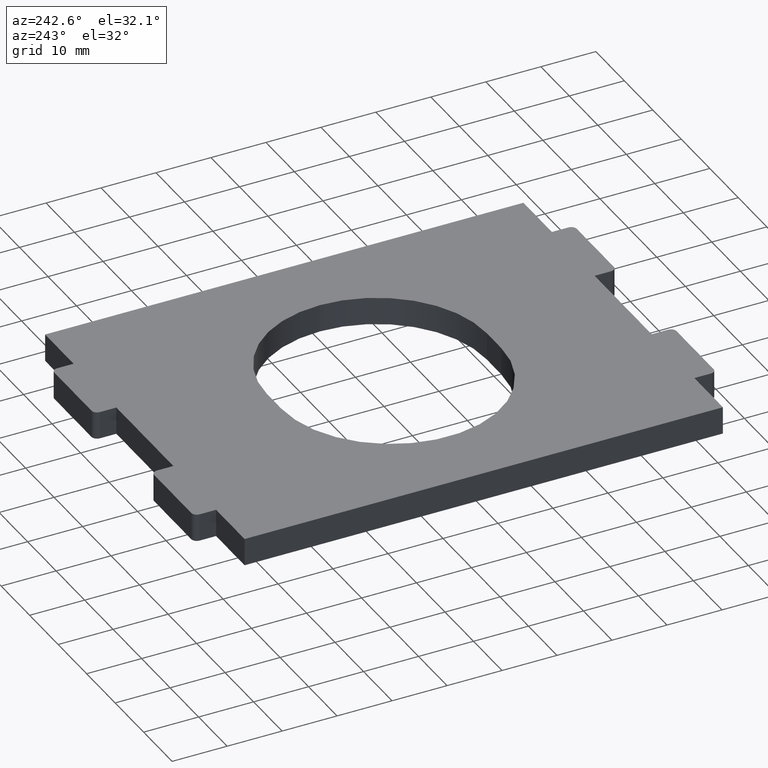
[diagram: clean part render]
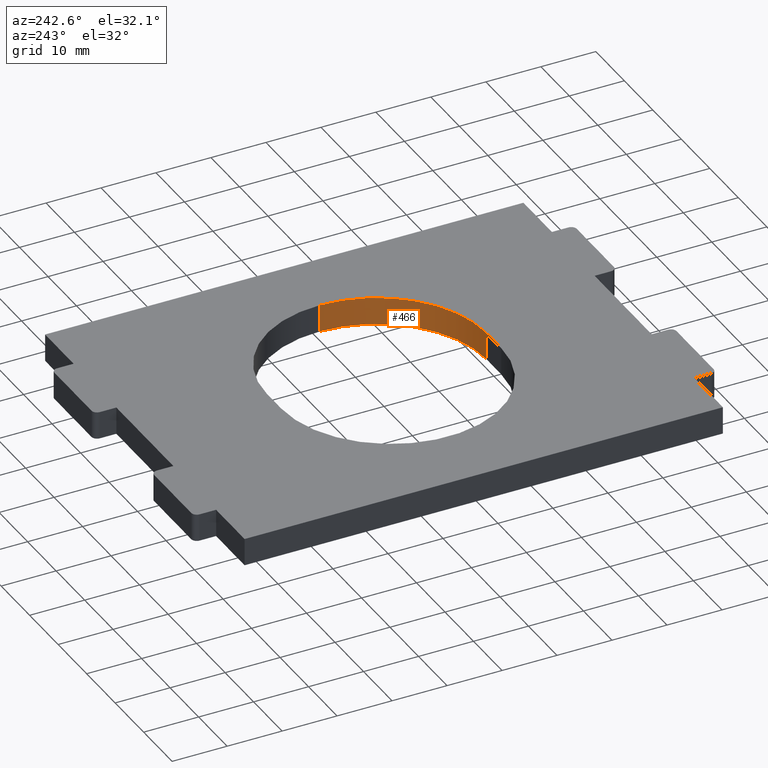
[diagram: same view with one face highlighted and labeled with its STEP entity id]
A machine part, auxiliary view. The second image highlights one B-rep face of the part: STEP entity #466.
In plain terms, the highlighted cylindrical surface (partial cylindrical patch) has radius 20 mm, axis along (-0, -0, 1).
Its self-contained STEP definition (entity closure, byte-faithful):
#14 = VERTEX_POINT ( 'NONE', #250 ) ;
#40 = ORIENTED_EDGE ( 'NONE', *, *, #167, .T. ) ;
#47 = CARTESIAN_POINT ( 'NONE',  ( 2.499999999999996447, -20.00000000000000000, -2.500000000000000000 ) ) ;
#78 = CIRCLE ( 'NONE', #1038, 19.99999999999999645 ) ;
#118 = EDGE_CURVE ( 'NONE', #14, #891, #141, .T. ) ;
#141 = LINE ( 'NONE', #803, #857 ) ;
#167 = EDGE_CURVE ( 'NONE', #190, #891, #837, .T. ) ;
#190 = VERTEX_POINT ( 'NONE', #933 ) ;
#223 = LINE ( 'NONE', #47, #1174 ) ;
#231 = DIRECTION ( 'NONE',  ( 1.000000000000000000, 0.000000000000000000, 0.000000000000000000 ) ) ;
#250 = CARTESIAN_POINT ( 'NONE',  ( 22.49999999999999645, -3.469446951953614189E-15, -2.500000000000000000 ) ) ;
#275 = DIRECTION ( 'NONE',  ( 0.000000000000000000, 0.000000000000000000, 1.000000000000000000 ) ) ;
#301 = ORIENTED_EDGE ( 'NONE', *, *, #118, .F. ) ;
#313 = CARTESIAN_POINT ( 'NONE',  ( 22.49999999999999645, -3.469446951953614189E-15, 2.500000000000000000 ) ) ;
#368 = CARTESIAN_POINT ( 'NONE',  ( 2.500000000000000000, -3.469446951953614189E-15, 2.500000000000000000 ) ) ;
#403 = AXIS2_PLACEMENT_3D ( 'NONE', #607, #516, #802 ) ;
#418 = CARTESIAN_POINT ( 'NONE',  ( 2.500000000000000000, -3.469446951953614189E-15, -2.500000000000000000 ) ) ;
#427 = FACE_OUTER_BOUND ( 'NONE', #462, .T. ) ;
#443 = CARTESIAN_POINT ( 'NONE',  ( 2.499999999999996447, -19.99999999999999645, -2.500000000000000000 ) ) ;
#462 = EDGE_LOOP ( 'NONE', ( #301, #504, #721, #40 ) ) ;
#466 = ADVANCED_FACE ( 'NONE', ( #427 ), #788, .F. ) ;
#504 = ORIENTED_EDGE ( 'NONE', *, *, #949, .F. ) ;
#510 = EDGE_CURVE ( 'NONE', #1067, #190, #223, .T. ) ;
#516 = DIRECTION ( 'NONE',  ( -0.000000000000000000, -0.000000000000000000, 1.000000000000000000 ) ) ;
#607 = CARTESIAN_POINT ( 'NONE',  ( 2.500000000000000000, -3.469446951953614189E-15, -2.500000000000000000 ) ) ;
#714 = DIRECTION ( 'NONE',  ( -0.000000000000000000, -0.000000000000000000, 1.000000000000000000 ) ) ;
#721 = ORIENTED_EDGE ( 'NONE', *, *, #510, .T. ) ;
#744 = DIRECTION ( 'NONE',  ( 1.000000000000000000, 0.000000000000000000, 0.000000000000000000 ) ) ;
#788 = CYLINDRICAL_SURFACE ( 'NONE', #403, 19.99999999999999645 ) ;
#802 = DIRECTION ( 'NONE',  ( 1.000000000000000000, 0.000000000000000000, 0.000000000000000000 ) ) ;
#803 = CARTESIAN_POINT ( 'NONE',  ( 22.49999999999999645, -3.469446951953614189E-15, -2.500000000000000000 ) ) ;
#837 = CIRCLE ( 'NONE', #1190, 19.99999999999999645 ) ;
#857 = VECTOR ( 'NONE', #714, 1000.000000000000000 ) ;
#880 = DIRECTION ( 'NONE',  ( -0.000000000000000000, -0.000000000000000000, 1.000000000000000000 ) ) ;
#891 = VERTEX_POINT ( 'NONE', #313 ) ;
#933 = CARTESIAN_POINT ( 'NONE',  ( 2.499999999999996447, -20.00000000000000000, 2.500000000000000000 ) ) ;
#949 = EDGE_CURVE ( 'NONE', #1067, #14, #78, .T. ) ;
#1038 = AXIS2_PLACEMENT_3D ( 'NONE', #418, #1066, #231 ) ;
#1066 = DIRECTION ( 'NONE',  ( 0.000000000000000000, 0.000000000000000000, 1.000000000000000000 ) ) ;
#1067 = VERTEX_POINT ( 'NONE', #443 ) ;
#1174 = VECTOR ( 'NONE', #880, 1000.000000000000000 ) ;
#1190 = AXIS2_PLACEMENT_3D ( 'NONE', #368, #275, #744 ) ;